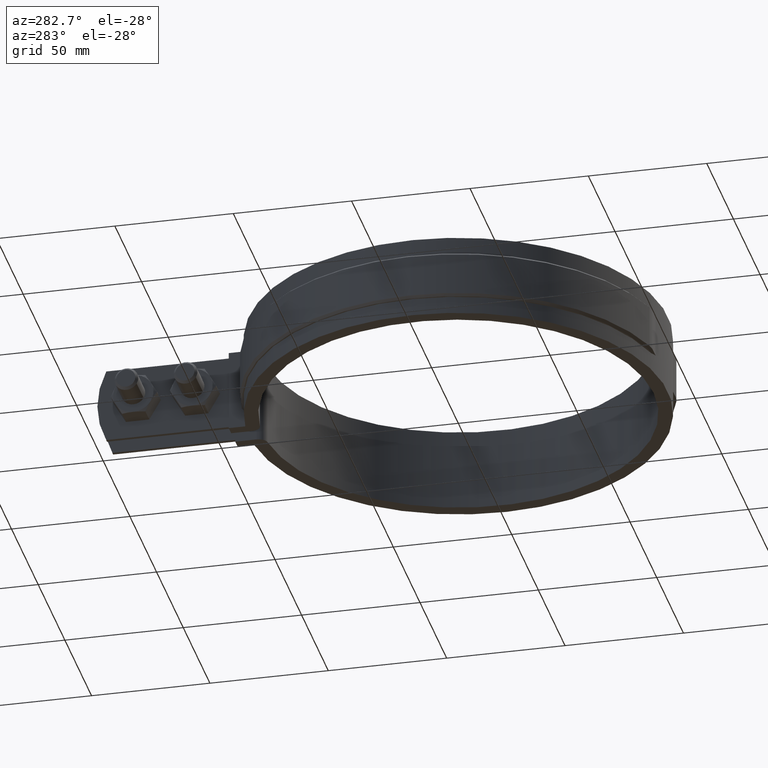
[diagram: clean part render]
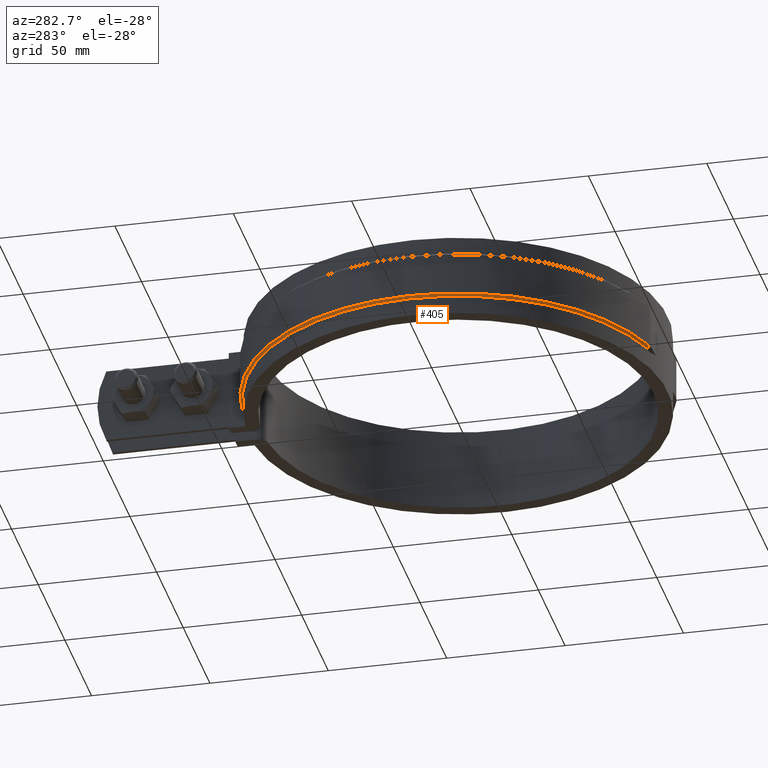
[diagram: same view with one face highlighted and labeled with its STEP entity id]
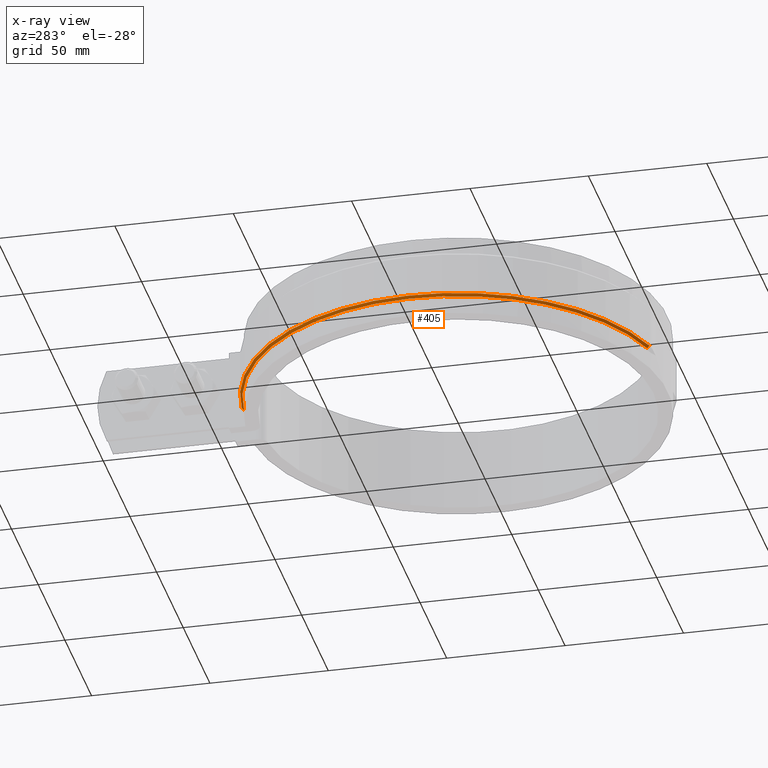
[diagram: x-ray of the same camera — body ghosted, the highlighted face saturated]
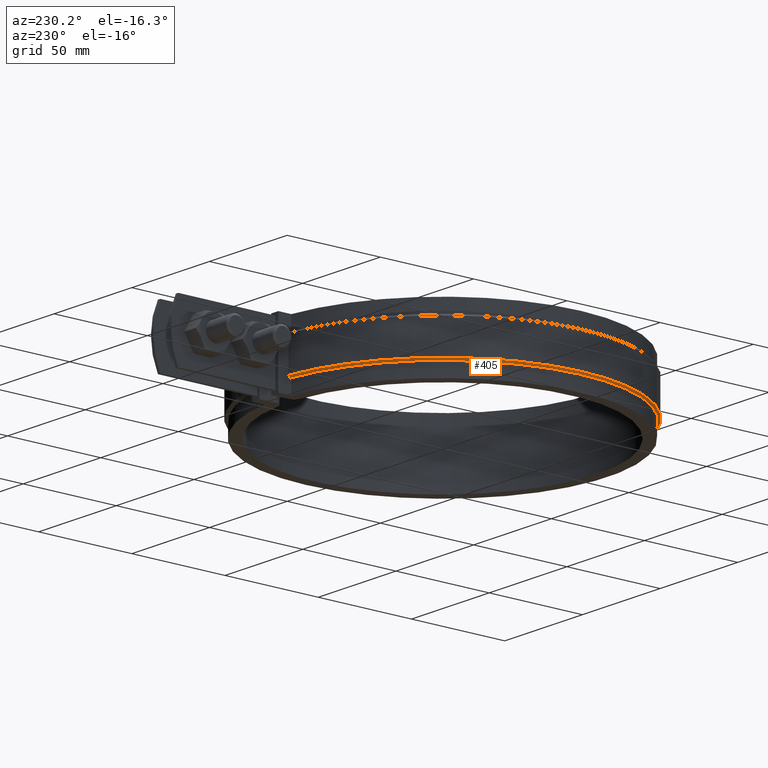
[diagram: same view with one face highlighted and labeled with its STEP entity id]
A machine part, auxiliary view. The second image highlights one B-rep face of the part: STEP entity #405.
The next image is the same camera in x-ray: the body ghosted, the highlighted face saturated — about 0% of this face is hidden behind the body in this view.
A second angle (auxiliary view) of the same face is appended — the face is thin or edge-on in the first view.
In plain terms, the highlighted conical surface has half-angle 45 deg.
Its self-contained STEP definition (entity closure, byte-faithful):
#405 = ADVANCED_FACE( '', ( #670 ), #671, .T. );
#670 = FACE_OUTER_BOUND( '', #1748, .T. );
#671 = CONICAL_SURFACE( '', #1749, 89.0000000000000, 0.785398163397455 );
#1748 = EDGE_LOOP( '', ( #4163, #4164, #4165, #4166 ) );
#1749 = AXIS2_PLACEMENT_3D( '', #4167, #4168, #4169 );
#4163 = ORIENTED_EDGE( '', *, *, #4902, .F. );
#4164 = ORIENTED_EDGE( '', *, *, #4908, .F. );
#4165 = ORIENTED_EDGE( '', *, *, #4909, .F. );
#4166 = ORIENTED_EDGE( '', *, *, #4850, .F. );
#4167 = CARTESIAN_POINT( '', ( 0.000000000000000, 0.000000000000000, -26.0000000000000 ) );
#4168 = DIRECTION( '', ( 0.000000000000000, 0.000000000000000, 1.00000000000000 ) );
#4169 = DIRECTION( '', ( 1.00000000000000, 0.000000000000000, 0.000000000000000 ) );
#4850 = EDGE_CURVE( '', #5435, #5430, #5437, .T. );
#4902 = EDGE_CURVE( '', #5519, #5435, #5522, .F. );
#4908 = EDGE_CURVE( '', #5531, #5519, #5532, .T. );
#4909 = EDGE_CURVE( '', #5430, #5531, #5533, .T. );
#5430 = VERTEX_POINT( '', #7762 );
#5435 = VERTEX_POINT( '', #7768 );
#5437 = CIRCLE( '', #7771, 90.0000000000000 );
#5519 = VERTEX_POINT( '', #8385 );
#5522 = B_SPLINE_CURVE_WITH_KNOTS( '', 3, ( #8389, #8390, #8391, #8392 ), .UNSPECIFIED., .F., .F., ( 4, 4 ), ( 706.979779911650, 706.981197264136 ), .UNSPECIFIED. );
#5531 = VERTEX_POINT( '', #8408 );
#5532 = CIRCLE( '', #8409, 89.0000000000000 );
#5533 = LINE( '', #8410, #8411 );
#7762 = CARTESIAN_POINT( '', ( -25.2000000000000, -86.4000000000000, -25.0000000000000 ) );
#7768 = CARTESIAN_POINT( '', ( -8.40000000000000, 89.6071425724534, -25.0000000000000 ) );
#7771 = AXIS2_PLACEMENT_3D( '', #8992, #8993, #8994 );
#8385 = CARTESIAN_POINT( '', ( -8.40000000000000, 88.6027087622043, -26.0000000000000 ) );
#8389 = CARTESIAN_POINT( '', ( -8.40000000000000, 89.6071425724280, -25.0000000000253 ) );
#8390 = CARTESIAN_POINT( '', ( -8.40000000000000, 89.2723395288544, -25.3333416006830 ) );
#8391 = CARTESIAN_POINT( '', ( -8.40000000000000, 88.9375283516210, -25.6666750273150 ) );
#8392 = CARTESIAN_POINT( '', ( -8.40000000000000, 88.6027087621967, -26.0000000000076 ) );
#8408 = CARTESIAN_POINT( '', ( -24.9200000000000, -85.4400000000000, -26.0000000000000 ) );
#8409 = AXIS2_PLACEMENT_3D( '', #9062, #9063, #9064 );
#8410 = CARTESIAN_POINT( '', ( -25.2000000000000, -86.4000000000000, -25.0000000000000 ) );
#8411 = VECTOR( '', #9065, 1000.00000000000 );
#8992 = CARTESIAN_POINT( '', ( 0.000000000000000, 0.000000000000000, -25.0000000000000 ) );
#8993 = DIRECTION( '', ( 0.000000000000000, 0.000000000000000, 1.00000000000000 ) );
#8994 = DIRECTION( '', ( 1.00000000000000, 0.000000000000000, 0.000000000000000 ) );
#9062 = CARTESIAN_POINT( '', ( 0.000000000000000, 0.000000000000000, -26.0000000000000 ) );
#9063 = DIRECTION( '', ( 0.000000000000000, 0.000000000000000, -1.00000000000000 ) );
#9064 = DIRECTION( '', ( -1.00000000000000, 0.000000000000000, 0.000000000000000 ) );
#9065 = DIRECTION( '', ( 0.197989898732236, 0.678822509939091, -0.707106781186542 ) );